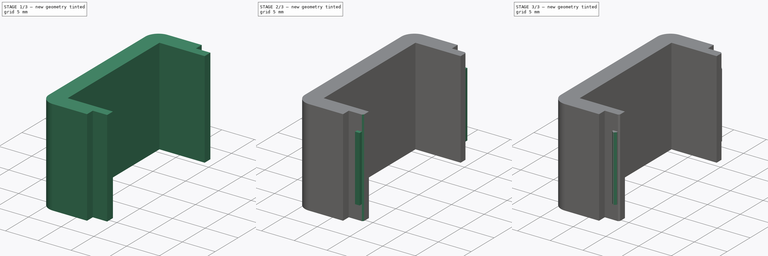
[diagram: build sequence overview — one tinted view per stage of 3, left to right]
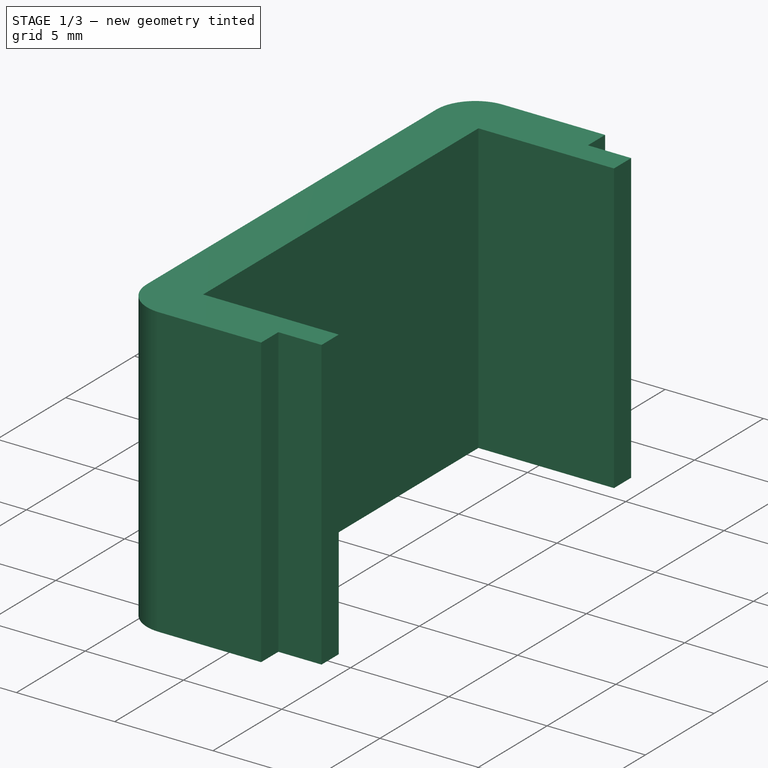
[diagram: stage 1 of 3 — iso view after this stage's code; geometry added in this stage tinted green]
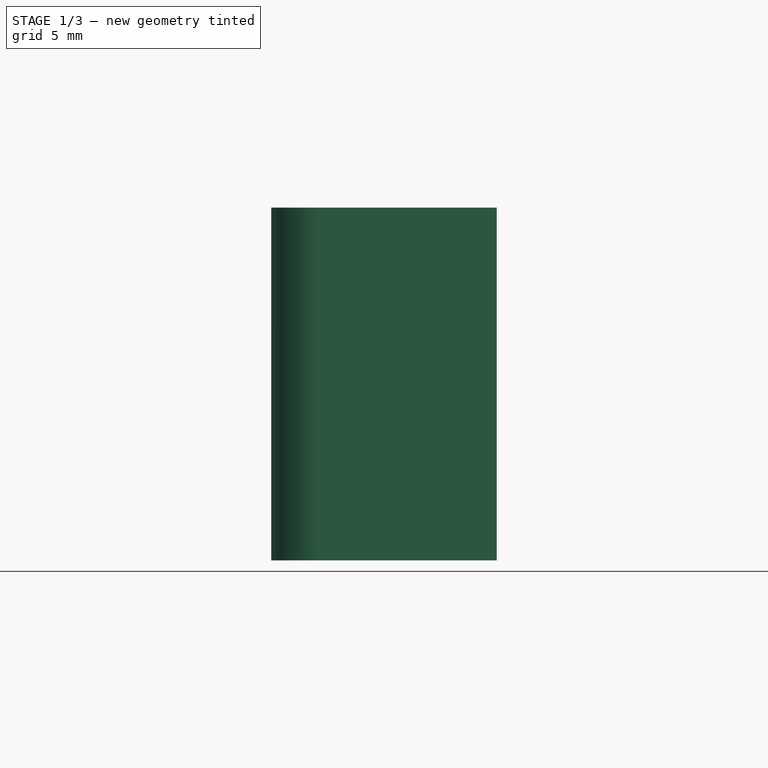
[diagram: stage 1 of 3 — front view after this stage's code; geometry added in this stage tinted green]
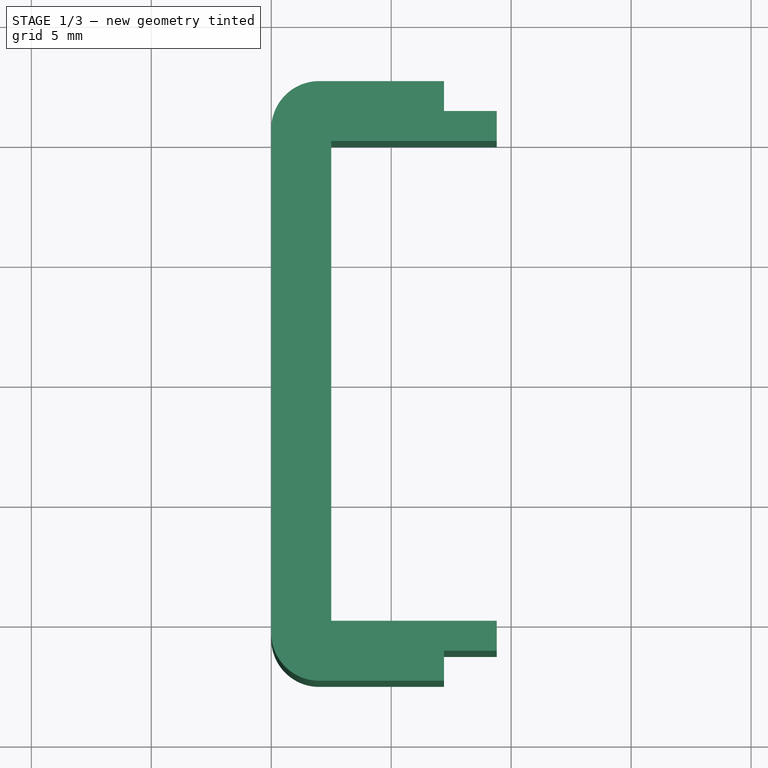
[diagram: stage 1 of 3 — top view after this stage's code; geometry added in this stage tinted green]
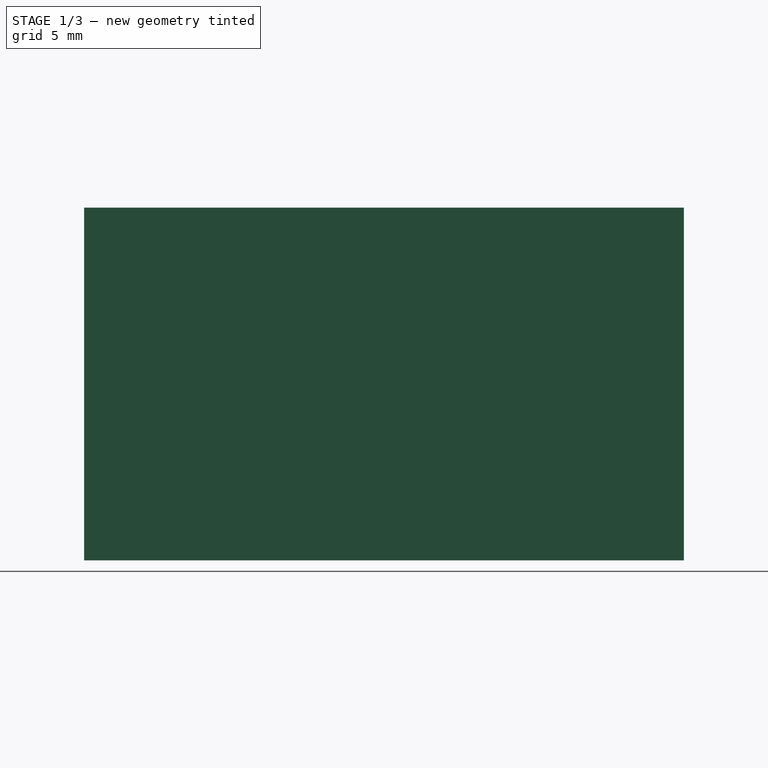
[diagram: stage 1 of 3 — right view after this stage's code; geometry added in this stage tinted green]
FCSTD DOCUMENT  (FreeCAD 0.21R33694 (Git))
Label: box_serial_port_cover
License: All rights reserved
LicenseURL: https://en.wikipedia.org/wiki/All_rights_reserved
objects: Sketcher::SketchObject×3, PartDesign::Pad×3, PartDesign::Chamfer×3, PartDesign::Fillet×1, PartDesign::Body×1
note: 18 computed .brp shape members not serialized (recipe doc carries the construction recipe); baked Part::Feature solids carry a one-line shape summary decoded from their .brp

FEATURE [Sketcher::SketchObject] Sketch
  FullyConstrained = true
  MapMode = 5
  Support = -> [XY_Plane]
  sketch-geometry (14):
    g0: LineSegment StartX=9.4 StartY=-10 StartZ=0 EndX=9.4 EndY=-11.25 EndZ=0
    g1: LineSegment StartX=9.4 StartY=-11.25 StartZ=0 EndX=7.2 EndY=-11.25 EndZ=0
    g2: LineSegment StartX=7.2 StartY=-11.25 StartZ=0 EndX=7.2 EndY=-12.5 EndZ=0
    g3: LineSegment StartX=7.2 StartY=-12.5 StartZ=0 EndX=0 EndY=-12.5 EndZ=0
    g4: LineSegment StartX=0 StartY=-12.5 StartZ=0 EndX=0 EndY=12.5 EndZ=0
    g5: LineSegment StartX=0 StartY=12.5 StartZ=0 EndX=7.2 EndY=12.5 EndZ=0
    g6: LineSegment StartX=7.2 StartY=12.5 StartZ=0 EndX=7.2 EndY=11.25 EndZ=0
    g7: LineSegment StartX=7.2 StartY=11.25 StartZ=0 EndX=9.4 EndY=11.25 EndZ=0
    g8: LineSegment StartX=9.4 StartY=11.25 StartZ=0 EndX=9.4 EndY=10 EndZ=0
    g9: LineSegment StartX=7.2 StartY=-10 StartZ=0 EndX=9.4 EndY=-10 EndZ=0
    g10: LineSegment StartX=7.2 StartY=10 StartZ=0 EndX=9.4 EndY=10 EndZ=0
    g11: LineSegment StartX=7.2 StartY=10 StartZ=0 EndX=2.5 EndY=10 EndZ=0
    g12: LineSegment StartX=2.5 StartY=10 StartZ=0 EndX=2.5 EndY=-10 EndZ=0
    g13: LineSegment StartX=2.5 StartY=-10 StartZ=0 EndX=7.2 EndY=-10 EndZ=0
  constraints (42):
    c: Coincident(g0,g1)
    c: Horizontal(g1)
    c: Coincident(g1,g2)
    c: Coincident(g2,g3)
    c: Horizontal(g3)
    c: Coincident(g3,g4)
    c: Vertical(g4)
    c: Coincident(g4,g5)
    c: Horizontal(g5)
    c: Coincident(g5,g6)
    c: Vertical(g6)
    c: Coincident(g6,g7)
    c: Horizontal(g7)
    c: Coincident(g7,g8)
    c: Vertical(g8)
    c: Coincident(g9,g0)
    c: Horizontal(g9)
    c: DistanceY(g4,g4) = 25
    c: Vertical(g0,g8)
    c: DistanceX(g7,g7) = 2.2
    c: Vertical(g0)
    c: Vertical(g10,g5)
    c: Vertical(g5,g1)
    c: Vertical(g2)
    c: Coincident(g10,g8)
    c: Horizontal(g10)
    c: DistanceX(g5,g5) = 7.2
    c: Vertical(g4,g-1)
    c: Vertical(g9,g10)
    c: Equal(g8,g0)
    c: DistanceY(g0,g0) = 1.25
    c: DistanceY(g6,g6) = 1.25
    c: DistanceY(g2,g2) = 1.25
    c: DistanceY(g-1,g4) = 12.5
    c: Coincident(g10,g11)
    c: Horizontal(g11)
    c: Coincident(g11,g12)
    c: Vertical(g12)
    c: Coincident(g12,g13)
    c: Coincident(g13,g9)
    c: Horizontal(g13)
    c: DistanceX(g3,g12) = 2.5
FEATURE [PartDesign::Pad] Pad
  Direction = (0,0,1)
  Length = 14.7
  Length2 = 10
  Profile = -> Sketch
  ReferenceAxis = -> Sketch [N_Axis]
  Type = 0
FEATURE [PartDesign::Fillet] Fillet
  Base = -> Pad [Edge14,Edge11]
  BaseFeature = -> Pad
  Radius = 2
  SupportTransform = false
  UseAllEdges = false
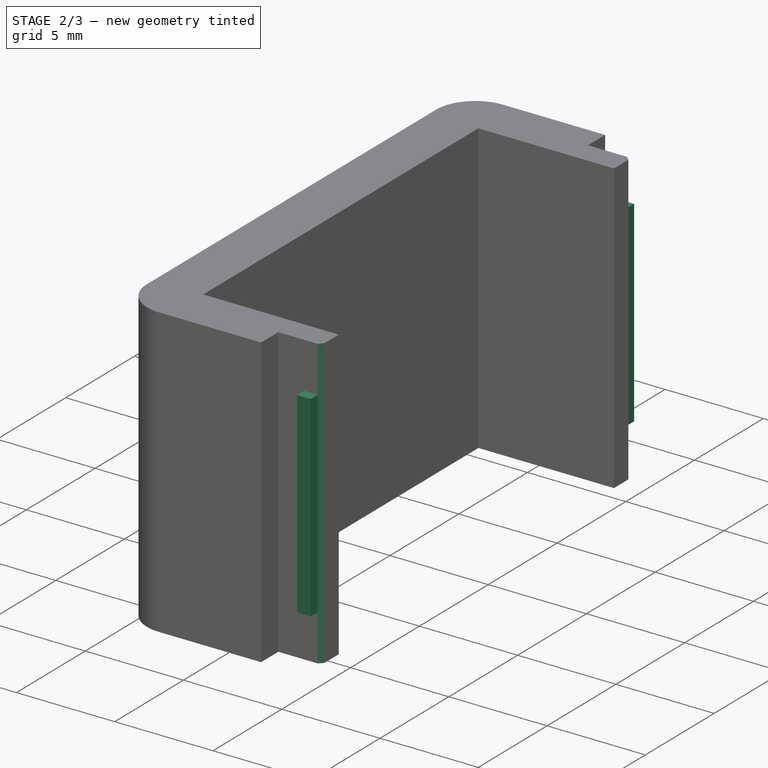
[diagram: stage 2 of 3 — iso view after this stage's code; geometry added in this stage tinted green]
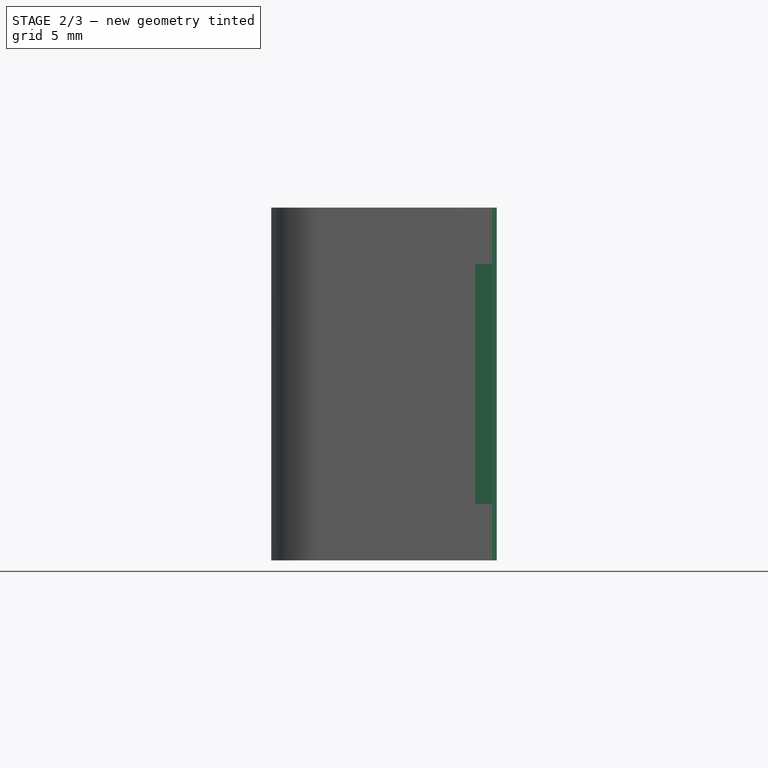
[diagram: stage 2 of 3 — front view after this stage's code; geometry added in this stage tinted green]
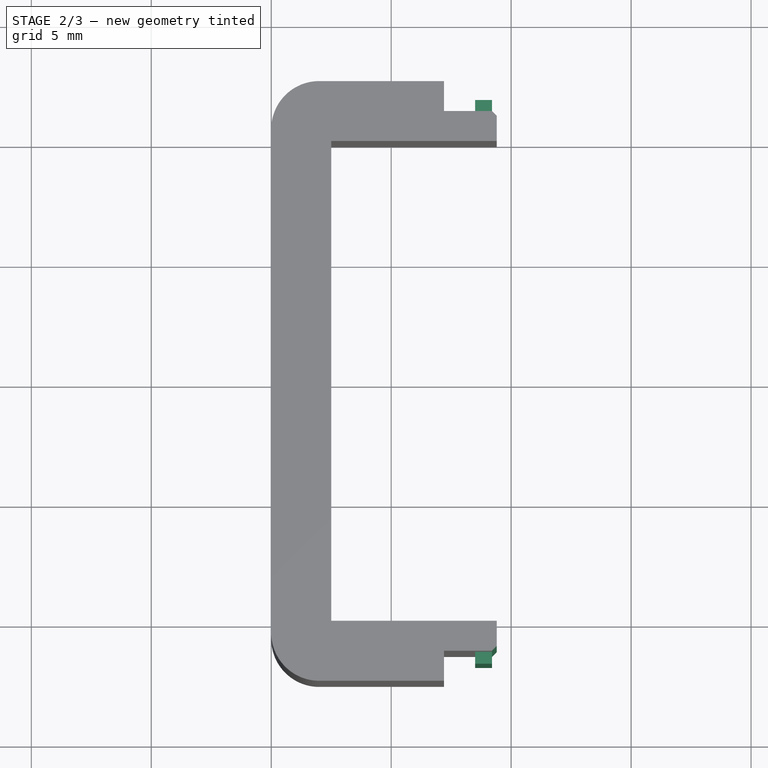
[diagram: stage 2 of 3 — top view after this stage's code; geometry added in this stage tinted green]
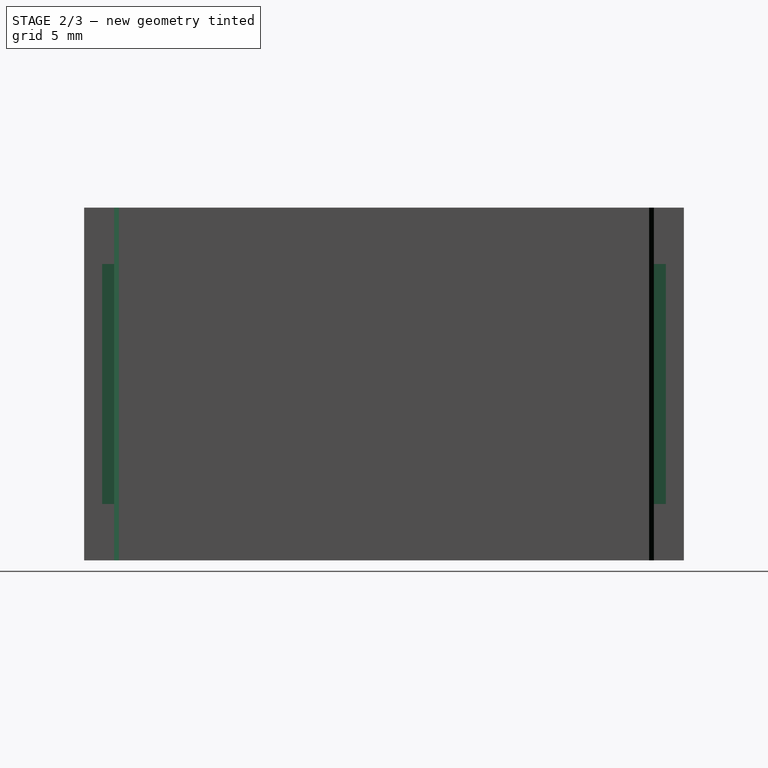
[diagram: stage 2 of 3 — right view after this stage's code; geometry added in this stage tinted green]
FEATURE [PartDesign::Chamfer] Chamfer
  Angle = 45
  Base = -> Fillet [Edge38,Edge45]
  BaseFeature = -> Fillet
  ChamferType = 0
  FlipDirection = false
  Size = 0.2
  Size2 = 1
  SupportTransform = false
  UseAllEdges = false
FEATURE [Sketcher::SketchObject] Sketch001
  ExternalGeometry = -> [Chamfer]
  FullyConstrained = true
  MapMode = 5
  Placement = pos=(0,-11.25,0) rot=(1,0,0;1.5708rad)
  Support = -> [Chamfer]
  sketch-geometry (4):
    g0: LineSegment StartX=8.5 StartY=12.35 StartZ=0 EndX=9.2 EndY=12.35 EndZ=0
    g1: LineSegment StartX=9.2 StartY=12.35 StartZ=0 EndX=9.2 EndY=2.35 EndZ=0
    g2: LineSegment StartX=9.2 StartY=2.35 StartZ=0 EndX=8.5 EndY=2.35 EndZ=0
    g3: LineSegment StartX=8.5 StartY=2.35 StartZ=0 EndX=8.5 EndY=12.35 EndZ=0
  constraints (12):
    c: Coincident(g0,g1)
    c: Coincident(g1,g2)
    c: Coincident(g2,g3)
    c: Coincident(g3,g0)
    c: Horizontal(g0)
    c: Horizontal(g2)
    c: Vertical(g1)
    c: Vertical(g3)
    c: DistanceX(g0,g0) = 0.7
    c: Vertical(g0,g-3)
    c: DistanceY(g3,g3) = 10
    c: DistanceY(g-3,g1) = 2.35
FEATURE [PartDesign::Pad] Pad001
  BaseFeature = -> Chamfer
  Direction = (0,-1,2e-16)
  Length = 0.5
  Length2 = 10
  Profile = -> Sketch001
  ReferenceAxis = -> Sketch001 [N_Axis]
  Type = 0
FEATURE [Sketcher::SketchObject] Sketch002
  FullyConstrained = false
  MapMode = 5
  Placement = pos=(0,11.25,0) rot=(0,0.707107,0.707107;3.14159rad)
  sketch-geometry (4):
    g0: LineSegment StartX=-9.2 StartY=12.35 StartZ=0 EndX=-8.5 EndY=12.35 EndZ=0
    g1: LineSegment StartX=-8.5 StartY=12.35 StartZ=0 EndX=-8.5 EndY=2.35 EndZ=0
    g2: LineSegment StartX=-8.5 StartY=2.35 StartZ=0 EndX=-9.2 EndY=2.35 EndZ=0
    g3: LineSegment StartX=-9.2 StartY=2.35 StartZ=0 EndX=-9.2 EndY=12.35 EndZ=0
  constraints (10):
    c: Coincident(g0,g1)
    c: Coincident(g1,g2)
    c: Coincident(g2,g3)
    c: Coincident(g3,g0)
    c: Horizontal(g0)
    c: Horizontal(g2)
    c: Vertical(g1)
    c: Vertical(g3)
    c: DistanceY(g3,g3) = 10
    c: DistanceX(g2,g2) = 0.7
FEATURE [PartDesign::Pad] Pad002
  BaseFeature = -> Pad001
  Direction = (0,1,-2e-16)
  Length = 0.5
  Length2 = 10
  Profile = -> Sketch002
  ReferenceAxis = -> Sketch002 [N_Axis]
  Type = 0
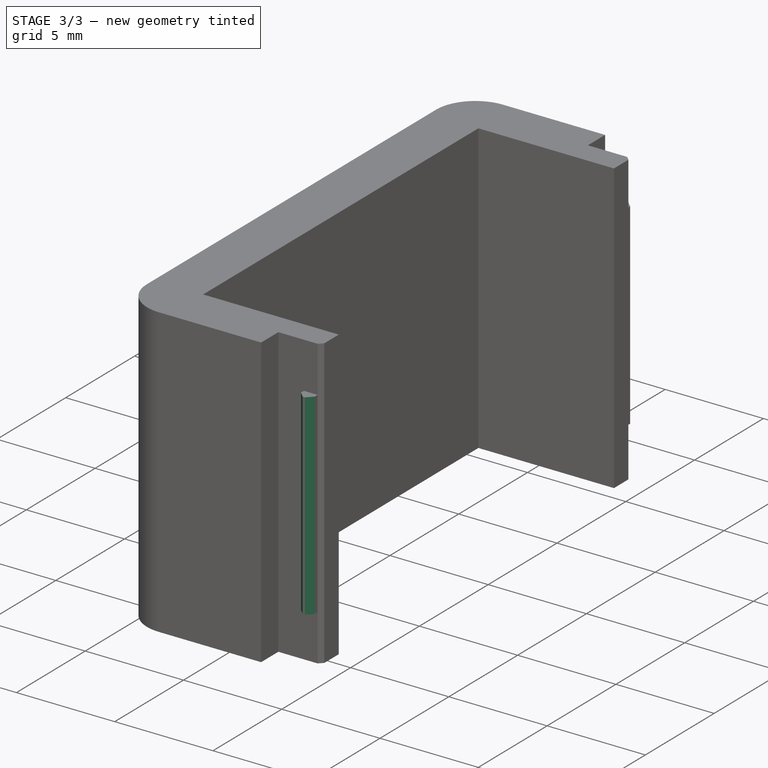
[diagram: stage 3 of 3 — iso view after this stage's code; geometry added in this stage tinted green]
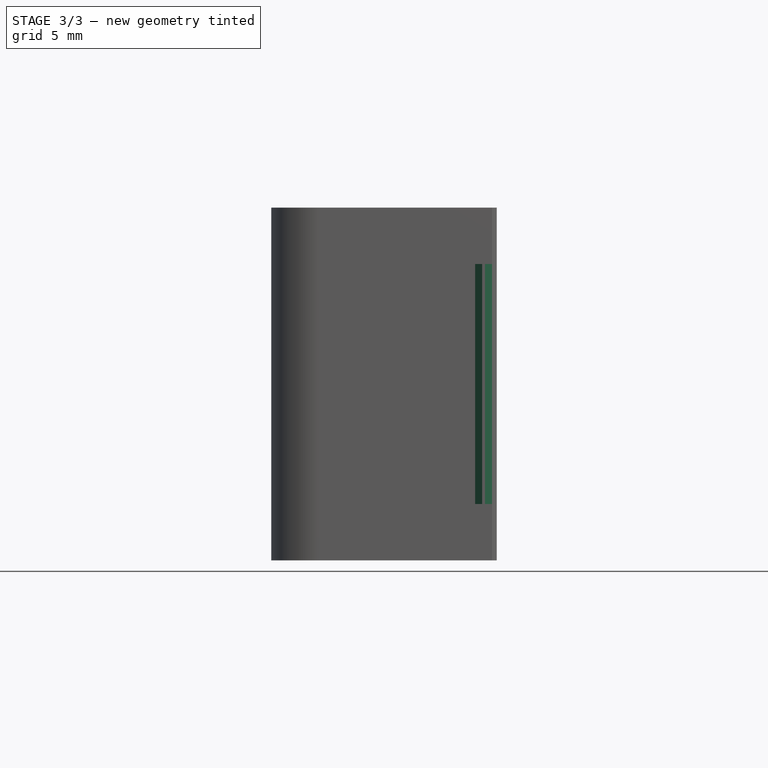
[diagram: stage 3 of 3 — front view after this stage's code; geometry added in this stage tinted green]
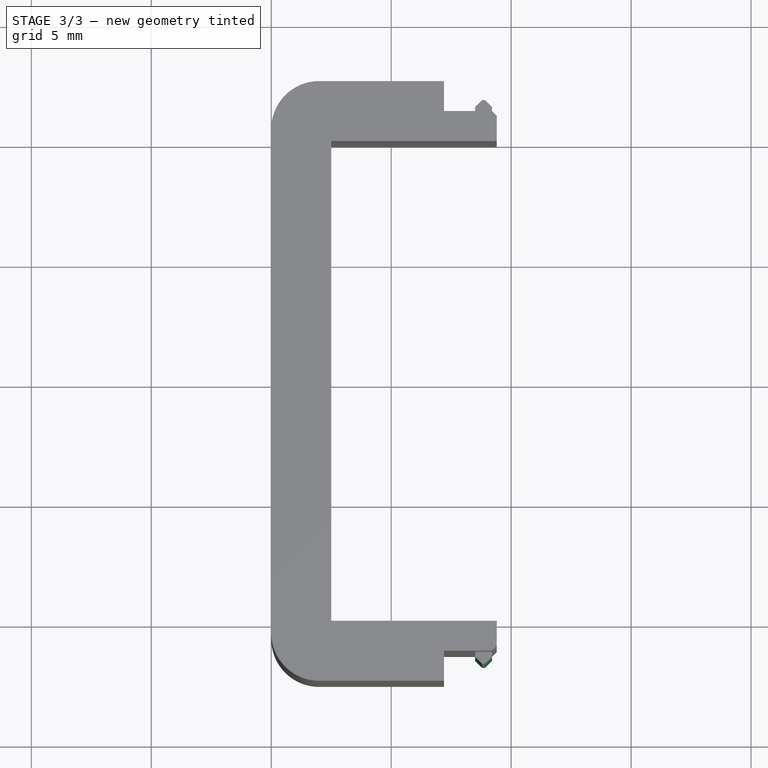
[diagram: stage 3 of 3 — top view after this stage's code; geometry added in this stage tinted green]
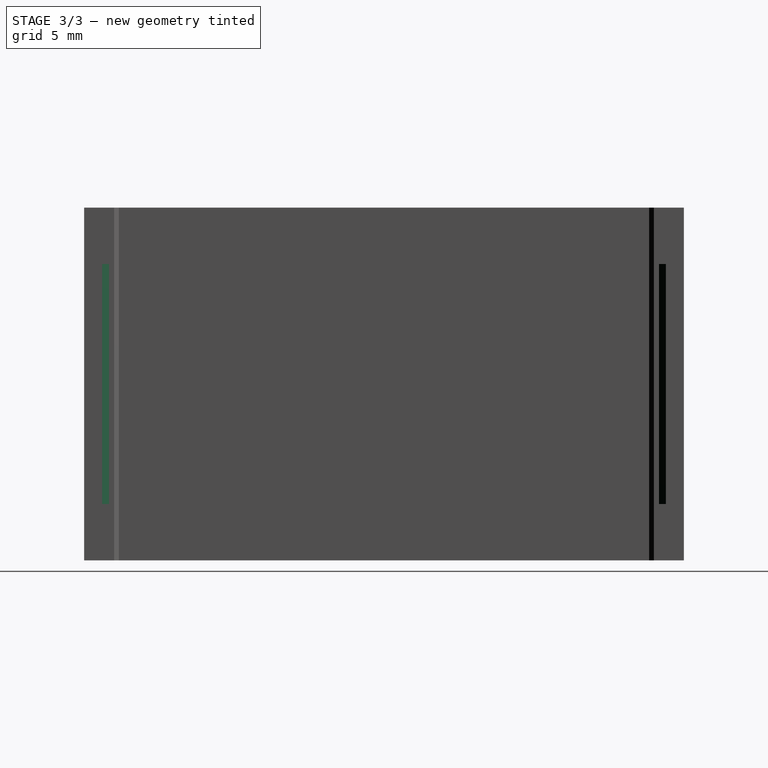
[diagram: stage 3 of 3 — right view after this stage's code; geometry added in this stage tinted green]
FEATURE [PartDesign::Chamfer] Chamfer001
  Angle = 45
  Base = -> Pad002 [Edge72,Edge69]
  BaseFeature = -> Pad002
  ChamferType = 0
  FlipDirection = false
  Size = 0.29
  Size2 = 1
  SupportTransform = false
  UseAllEdges = false
FEATURE [PartDesign::Chamfer] Chamfer002
  Angle = 45
  Base = -> Chamfer001 [Edge86,Edge83]
  BaseFeature = -> Chamfer001
  ChamferType = 0
  FlipDirection = false
  Size = 0.29
  Size2 = 1
  SupportTransform = false
  UseAllEdges = false
FEATURE [PartDesign::Body] Body
  Group = -> [Sketch,Pad,Fillet,Chamfer,Sketch001,Pad001,Sketch002,Pad002,Chamfer001,Chamfer002]
  Origin = -> Origin
  Tip = -> Chamfer002
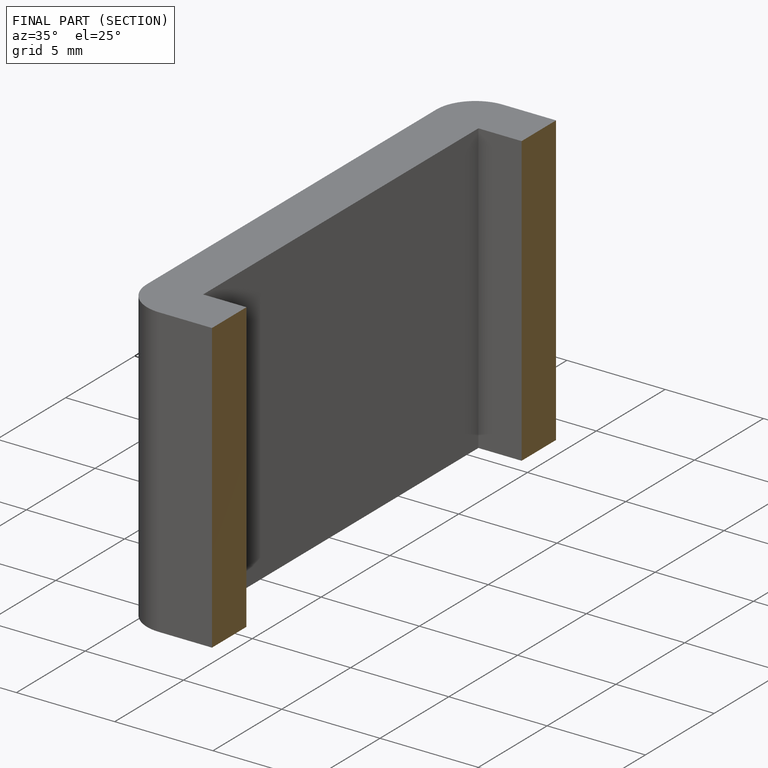
[diagram: finished part — half-section view (interior)]
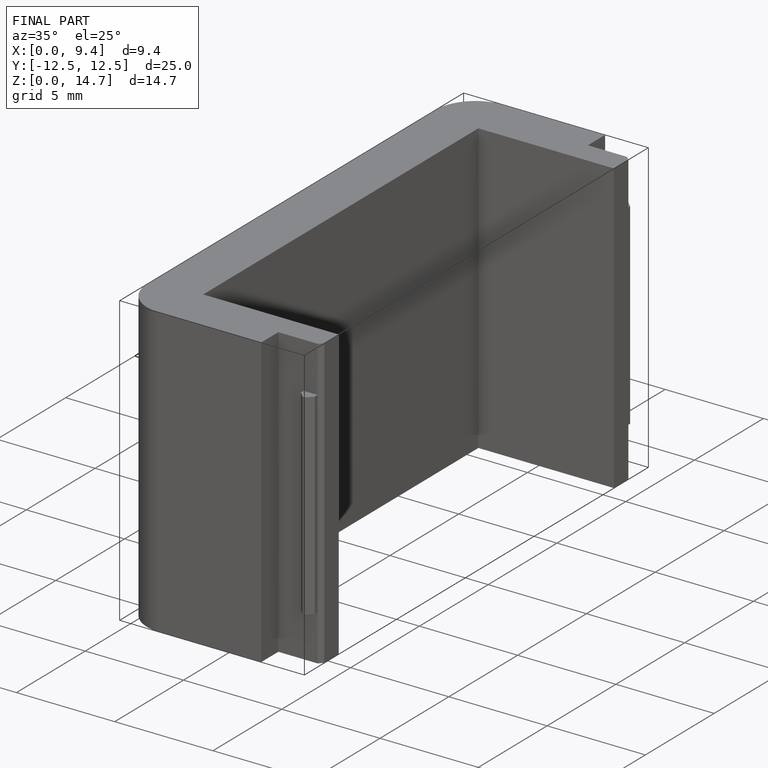
[diagram: finished part — iso view with bounding-box wireframe]
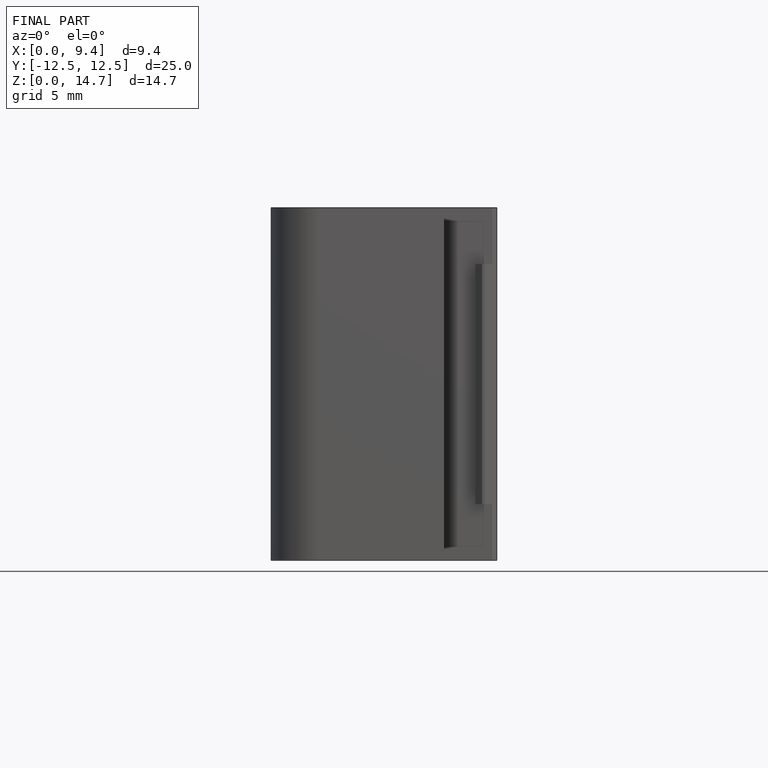
[diagram: finished part — front view with bounding-box wireframe]
